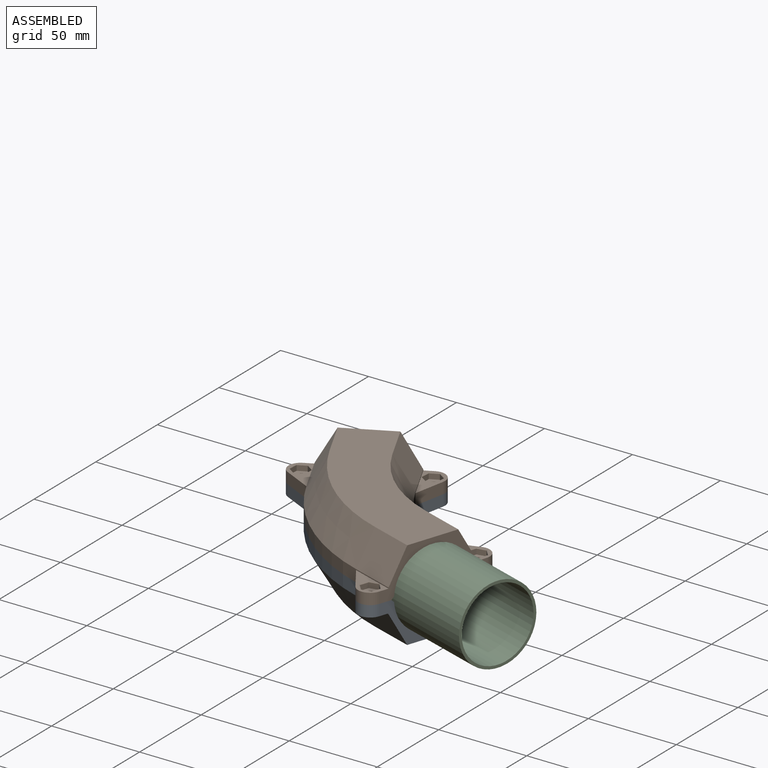
[diagram: assembled view]
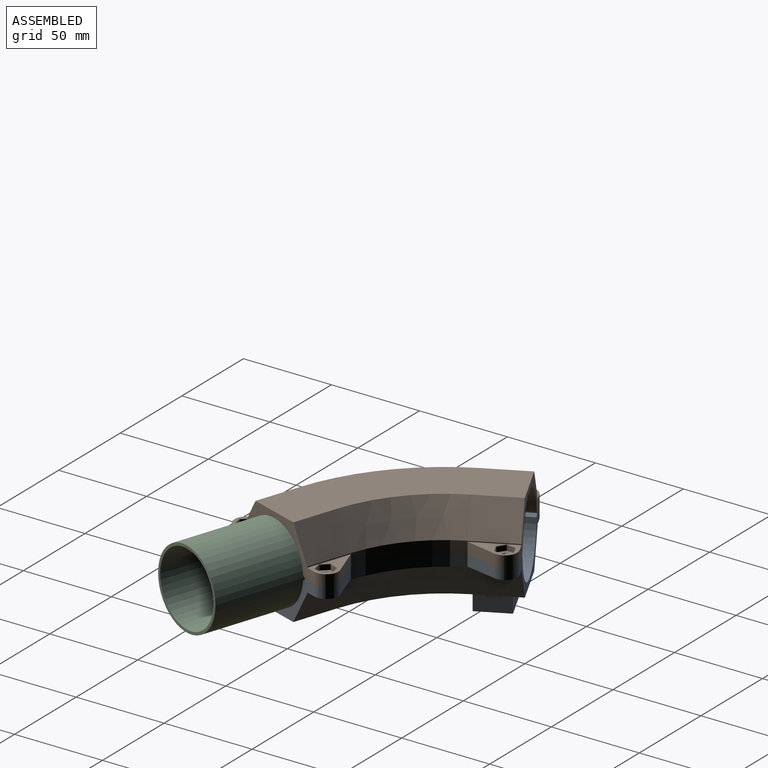
[diagram: assembled view, second angle]
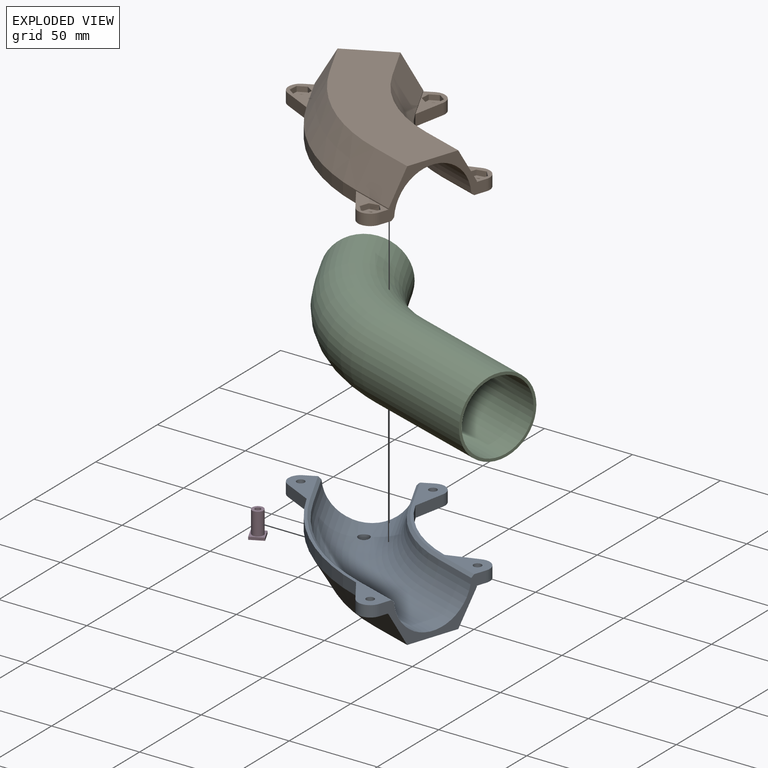
[diagram: exploded view]
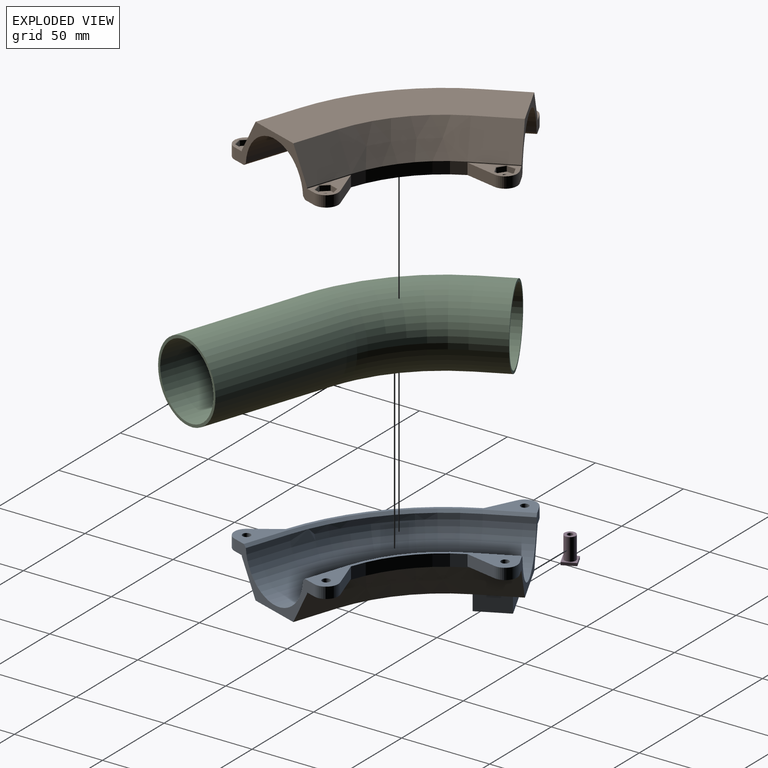
[diagram: exploded view, second angle]
ASSEMBLY  parts=4 mates=6
PART A: 52 faces, bbox 108.9x137.1x36.7 mm
  f0: cylinder r=22.42mm len=44.73mm, axis (0,1,0), area 1681.6mm2, adj f2,f20,f32,f35,f45
  f1: plane 43.99x43.99mm, normal (0.71,-0.71,0), area 385.6mm2, adj f3,f4,f5,f18,f19,f21,f22,f23
  f2: plane 62.21x25.59mm, normal (0,1,0), area 385.6mm2, adj f0,f3,f4,f9,f10,f19,f26,f27
  f3: plane 123.54x72.07mm, normal (0,0,-1), area 3426.9mm2, adj f1,f2,f40,f41,f42,f43,f46,f47
  f4: plane 137.11x67.91mm, normal (0,0,1), area 619mm2, adj f1,f2,f10,f11,f12,f13,f14,f17
  f5: cylinder r=6.9mm len=11.72mm, axis (0,0,-1), area 97.6mm2, adj f1,f6,f19,f24
  f6: plane 17.87x6.35mm, normal (0.13,0.99,0), area 114.5mm2, adj f5,f7,f19,f24
  f7: cylinder r=73.03mm len=51.64mm, axis (0,0,-1), area 393.3mm2, adj f6,f8,f19,f25,f27,f47
  f8: plane 14.29x10.99mm, normal (0.79,-0.61,0), area 114.5mm2, adj f7,f9,f19,f26
  f9: cylinder r=6.9mm len=11.11mm, axis (0,0,-1), area 97.6mm2, adj f2,f8,f19,f26
  f10: cylinder r=6.9mm len=11.11mm, axis (0,0,-1), area 97.6mm2, adj f2,f4,f11,f28
  f11: plane 14.29x10.99mm, normal (-0.79,-0.61,0), area 114.5mm2, adj f4,f10,f12,f28
  f12: cylinder r=124.21mm len=87.83mm, axis (0,0,-1), area 668.9mm2, adj f4,f11,f13,f23,f29,f50
  f13: plane 17.87x6.35mm, normal (-0.99,-0.13,0), area 114.5mm2, adj f4,f12,f18,f22
  f14: cylinder r=2.25mm len=4.5mm, axis (0,0,-1), area 44.8mm2, adj f4,f39
  f15: cylinder r=2.25mm len=4.5mm, axis (0,0,-1), area 44.8mm2, adj f19,f38
  f16: cylinder r=2.25mm len=4.5mm, axis (0,0,-1), area 44.8mm2, adj f19,f37
  f17: cylinder r=2.25mm len=4.5mm, axis (0,0,-1), area 44.8mm2, adj f4,f36
  f18: cylinder r=6.9mm len=11.72mm, axis (0,0,-1), area 97.6mm2, adj f1,f4,f13,f22
  f19: plane 96.16x46.91mm, normal (0,0,1), area 555.2mm2, adj f1,f2,f5,f6,f7,f8,f9,f15
  f20: torus R=98.62mm, axis (0,0,1), area 5224.4mm2, adj f0,f21,f31,f34
  f21: cylinder r=22.42mm len=49.59mm, axis (-0.71,0.71,0), area 1713.3mm2, adj f1,f20,f30,f33
  f22: plane 23.88x17.96mm, normal (0,0,-1), area 111.9mm2, adj f1,f13,f18,f23,f36
  f23: plane 17.96x17.96mm, normal (-0.71,-0.71,0), area 12.9mm2, adj f1,f12,f22,f51
  f24: plane 23.88x17.96mm, normal (0,0,-1), area 111.9mm2, adj f1,f5,f6,f25,f37
  f25: plane 17.96x17.96mm, normal (0.71,0.71,0), area 12.9mm2, adj f1,f7,f24,f48
  f26: plane 25.4x12.42mm, normal (0,0,-1), area 111.9mm2, adj f2,f8,f9,f27,f38
  f27: plane 25.4x0.51mm, normal (1,0,0), area 12.9mm2, adj f2,f7,f26,f46
  f28: plane 25.4x12.42mm, normal (0,0,-1), area 111.9mm2, adj f2,f10,f11,f29,f39
  f29: plane 25.4x0.51mm, normal (-1,0,0), area 12.9mm2, adj f2,f12,f28,f49
  f30: plane 19.08x19.08mm, normal (-0.48,-0.48,0.73), area 55.1mm2, adj f1,f19,f21,f31
  f31: cone r=74.67mm half-angle=46.9deg, axis (0,0,-1), area 128.6mm2, adj f19,f20,f30,f32
  f32: plane 25.4x1.58mm, normal (-0.68,0,0.73), area 55.1mm2, adj f0,f2,f19,f31
  f33: plane 19.08x19.08mm, normal (0.48,0.48,0.73), area 55.1mm2, adj f1,f4,f21,f34
  f34: cone r=120.98mm half-angle=46.9deg, axis (0,0,1), area 207.5mm2, adj f4,f20,f33,f35
  f35: plane 25.4x1.58mm, normal (0.68,0,0.73), area 55.1mm2, adj f0,f2,f4,f34
  f36: cone r=5.42mm half-angle=45deg, axis (0,0,-1), area 108.2mm2, adj f17,f22
  f37: cone r=5.42mm half-angle=45deg, axis (0,0,-1), area 108.2mm2, adj f16,f24
  f38: cone r=5.42mm half-angle=45deg, axis (0,0,-1), area 108.2mm2, adj f15,f26
  f39: cone r=5.42mm half-angle=45deg, axis (0,0,-1), area 108.2mm2, adj f14,f28
  f40: plane 19.05x11.11mm, normal (0,1,0), area 211.7mm2, adj f3,f41,f43,f44
  f41: plane 19.05x11.11mm, normal (1,0,0), area 211.7mm2, adj f3,f40,f42,f44
  f42: plane 19.05x11.11mm, normal (0,-1,0), area 211.7mm2, adj f3,f41,f43,f44
  f43: plane 19.05x11.11mm, normal (-1,0,0), area 211.7mm2, adj f3,f40,f42,f44
  f44: plane 19.05x19.05mm, normal (0,0,-1), area 331.2mm2, adj f40,f41,f42,f43,f45
  f45: cylinder r=3.17mm len=14.51mm, axis (0,0,-1), area 287.3mm2, adj f0,f44
  f46: plane 25.4x18.73mm, normal (0.87,0,-0.5), area 549.4mm2, adj f2,f3,f27,f47
  f47: cone r=83.84mm half-angle=30deg, axis (0,0,-1), area 1332.5mm2, adj f3,f7,f46,f48
  f48: plane 25.61x25.61mm, normal (0.61,0.61,-0.5), area 549.4mm2, adj f1,f3,f25,f47
  f49: plane 25.4x18.73mm, normal (-0.87,0,-0.5), area 549.4mm2, adj f2,f3,f29,f50
  f50: cone r=124.21mm half-angle=30deg, axis (0,0,1), area 2018.3mm2, adj f3,f12,f49,f51
  f51: plane 25.61x25.61mm, normal (-0.61,-0.61,-0.5), area 549.4mm2, adj f1,f3,f23,f50
PART B: 94 faces, bbox 108.9x137.1x25.6 mm
  f0: cylinder r=2.25mm len=4.5mm, axis (0,0,-1), area 44.8mm2, adj f11,f36
  f1: cylinder r=2.25mm len=4.5mm, axis (0,0,-1), area 44.8mm2, adj f22,f43
  f2: cylinder r=2.25mm len=4.5mm, axis (0,0,-1), area 44.8mm2, adj f22,f50
  f3: cylinder r=2.25mm len=4.5mm, axis (0,0,-1), area 44.8mm2, adj f11,f57
  f4: plane 23.88x17.96mm, normal (0,0,-1), area 126.1mm2, adj f8,f20,f21,f26,f64,f65,f66,f67
  f5: plane 23.88x17.96mm, normal (0,0,-1), area 126.1mm2, adj f8,f12,f13,f27,f70,f71,f72,f73
  f6: plane 25.4x12.42mm, normal (0,0,-1), area 126.1mm2, adj f9,f15,f16,f28,f76,f77,f78,f79
  f7: plane 25.4x12.42mm, normal (0,0,-1), area 126.1mm2, adj f9,f17,f18,f29,f82,f83,f84,f85
  f8: plane 43.99x43.99mm, normal (0.71,-0.71,0), area 385.6mm2, adj f4,f5,f10,f11,f12,f21,f22,f25
  f9: plane 62.21x25.59mm, normal (0,1,0), area 385.6mm2, adj f6,f7,f10,f11,f16,f17,f22,f23
  f10: plane 123.54x72.07mm, normal (0,0,-1), area 3789.8mm2, adj f8,f9,f88,f89,f90,f91,f92,f93
  f11: plane 137.11x67.91mm, normal (0,0,1), area 619mm2, adj f0,f3,f8,f9,f17,f18,f19,f20
  f12: cylinder r=6.9mm len=11.72mm, axis (0,0,-1), area 97.6mm2, adj f5,f8,f13,f22
  f13: plane 17.87x6.35mm, normal (0.13,0.99,0), area 114.5mm2, adj f5,f12,f14,f22
  f14: cylinder r=73.03mm len=51.64mm, axis (0,0,-1), area 393.3mm2, adj f13,f15,f22,f27,f28,f92
  f15: plane 14.29x10.99mm, normal (0.79,-0.61,0), area 114.5mm2, adj f6,f14,f16,f22
  f16: cylinder r=6.9mm len=11.11mm, axis (0,0,-1), area 97.6mm2, adj f6,f9,f15,f22
  f17: cylinder r=6.9mm len=11.11mm, axis (0,0,-1), area 97.6mm2, adj f7,f9,f11,f18
  f18: plane 14.29x10.99mm, normal (-0.79,-0.61,0), area 114.5mm2, adj f7,f11,f17,f19
  f19: cylinder r=124.21mm len=87.83mm, axis (0,0,-1), area 668.9mm2, adj f11,f18,f20,f26,f29,f89
  f20: plane 17.87x6.35mm, normal (-0.99,-0.13,0), area 114.5mm2, adj f4,f11,f19,f21
  f21: cylinder r=6.9mm len=11.72mm, axis (0,0,-1), area 97.6mm2, adj f4,f8,f11,f20
  f22: plane 96.16x46.91mm, normal (0,0,1), area 555.2mm2, adj f1,f2,f8,f9,f12,f13,f14,f15
  f23: cylinder r=22.42mm len=44.73mm, axis (0,1,0), area 1713.3mm2, adj f9,f24,f60,f63
  f24: torus R=98.62mm, axis (0,0,1), area 5224.4mm2, adj f23,f25,f59,f62
  f25: cylinder r=22.42mm len=49.59mm, axis (-0.71,0.71,0), area 1713.3mm2, adj f8,f24,f58,f61
  f26: plane 17.96x17.96mm, normal (-0.71,-0.71,0), area 12.9mm2, adj f4,f8,f19,f90
  f27: plane 17.96x17.96mm, normal (0.71,0.71,0), area 12.9mm2, adj f5,f8,f14,f93
  f28: plane 25.4x0.51mm, normal (1,0,0), area 12.9mm2, adj f6,f9,f14,f91
  f29: plane 25.4x0.51mm, normal (-1,0,0), area 12.9mm2, adj f7,f9,f19,f88
  f30: plane 4.52x2.95mm, normal (0.87,0.5,0), area 15.4mm2, adj f31,f35,f36,f83
  f31: plane 4.52x2.95mm, normal (0.87,-0.5,0), area 15.4mm2, adj f30,f32,f36,f82
  f32: plane 5.22x2.95mm, normal (0,-1,0), area 15.4mm2, adj f31,f33,f36,f84
  f33: plane 4.52x2.95mm, normal (-0.87,-0.5,0), area 15.4mm2, adj f32,f34,f36,f86
  f34: plane 4.52x2.95mm, normal (-0.87,0.5,0), area 15.4mm2, adj f33,f35,f36,f87
  f35: plane 5.22x2.95mm, normal (0,1,0), area 15.4mm2, adj f30,f34,f36,f85
  f36: plane 10.44x9.04mm, normal (0,0,-1), area 54.9mm2, adj f0,f30,f31,f32,f33,f34,f35
  f37: plane 4.52x2.95mm, normal (0.87,0.5,0), area 15.4mm2, adj f38,f42,f43,f79
  f38: plane 4.52x2.95mm, normal (0.87,-0.5,0), area 15.4mm2, adj f37,f39,f43,f77
  f39: plane 5.22x2.95mm, normal (0,-1,0), area 15.4mm2, adj f38,f40,f43,f76
  f40: plane 4.52x2.95mm, normal (-0.87,-0.5,0), area 15.4mm2, adj f39,f41,f43,f78
  f41: plane 4.52x2.95mm, normal (-0.87,0.5,0), area 15.4mm2, adj f40,f42,f43,f80
  f42: plane 5.22x2.95mm, normal (0,1,0), area 15.4mm2, adj f37,f41,f43,f81
  f43: plane 10.44x9.04mm, normal (0,0,-1), area 54.9mm2, adj f1,f37,f38,f39,f40,f41,f42
  f44: plane 5.04x2.95mm, normal (0.26,0.97,0), area 15.4mm2, adj f45,f49,f50,f71
  f45: plane 5.04x2.95mm, normal (0.97,0.26,0), area 15.4mm2, adj f44,f46,f50,f70
  f46: plane 3.69x3.69mm, normal (0.71,-0.71,0), area 15.4mm2, adj f45,f47,f50,f72
  f47: plane 5.04x2.95mm, normal (-0.26,-0.97,0), area 15.4mm2, adj f46,f48,f50,f74
  f48: plane 5.04x2.95mm, normal (-0.97,-0.26,0), area 15.4mm2, adj f47,f49,f50,f75
  f49: plane 3.69x3.69mm, normal (-0.71,0.71,0), area 15.4mm2, adj f44,f48,f50,f73
  f50: plane 10.08x10.08mm, normal (0,0,-1), area 54.9mm2, adj f2,f44,f45,f46,f47,f48,f49
  f51: plane 5.04x2.95mm, normal (0.26,0.97,0), area 15.4mm2, adj f52,f56,f57,f68
  f52: plane 5.04x2.95mm, normal (0.97,0.26,0), area 15.4mm2, adj f51,f53,f57,f69
  f53: plane 3.69x3.69mm, normal (0.71,-0.71,0), area 15.4mm2, adj f52,f54,f57,f67
  f54: plane 5.04x2.95mm, normal (-0.26,-0.97,0), area 15.4mm2, adj f53,f55,f57,f65
  f55: plane 5.04x2.95mm, normal (-0.97,-0.26,0), area 15.4mm2, adj f54,f56,f57,f64
  f56: plane 3.69x3.69mm, normal (-0.71,0.71,0), area 15.4mm2, adj f51,f55,f57,f66
  f57: plane 10.08x10.08mm, normal (0,0,-1), area 54.9mm2, adj f3,f51,f52,f53,f54,f55,f56
  f58: plane 19.08x19.08mm, normal (0.48,0.48,0.73), area 55.1mm2, adj f8,f11,f25,f59
  f59: cone r=120.98mm half-angle=46.9deg, axis (0,0,1), area 207.5mm2, adj f11,f24,f58,f60
  f60: plane 25.4x1.58mm, normal (0.68,0,0.73), area 55.1mm2, adj f9,f11,f23,f59
  f61: plane 19.08x19.08mm, normal (-0.48,-0.48,0.73), area 55.1mm2, adj f8,f22,f25,f62
  f62: cone r=74.67mm half-angle=46.9deg, axis (0,0,-1), area 128.6mm2, adj f22,f24,f61,f63
  f63: plane 25.4x1.58mm, normal (-0.68,0,0.73), area 55.1mm2, adj f9,f22,f23,f62
  f64: plane 5.3x1.61mm, normal (-0.68,-0.18,-0.71), area 1.7mm2, adj f4,f55,f65,f66
  f65: plane 5.3x1.61mm, normal (-0.18,-0.68,-0.71), area 1.7mm2, adj f4,f54,f64,f67
  f66: plane 3.95x3.95mm, normal (-0.5,0.5,-0.71), area 1.7mm2, adj f4,f56,f64,f68
  f67: plane 3.95x3.95mm, normal (0.5,-0.5,-0.71), area 1.7mm2, adj f4,f53,f65,f69
  f68: plane 5.3x1.61mm, normal (0.18,0.68,-0.71), area 1.7mm2, adj f4,f51,f66,f69
  f69: plane 5.3x1.61mm, normal (0.68,0.18,-0.71), area 1.7mm2, adj f4,f52,f67,f68
  f70: plane 5.3x1.61mm, normal (0.68,0.18,-0.71), area 1.7mm2, adj f5,f45,f71,f72
  f71: plane 5.3x1.61mm, normal (0.18,0.68,-0.71), area 1.7mm2, adj f5,f44,f70,f73
  f72: plane 3.95x3.95mm, normal (0.5,-0.5,-0.71), area 1.7mm2, adj f5,f46,f70,f74
  f73: plane 3.95x3.95mm, normal (-0.5,0.5,-0.71), area 1.7mm2, adj f5,f49,f71,f75
  f74: plane 5.3x1.61mm, normal (-0.18,-0.68,-0.71), area 1.7mm2, adj f5,f47,f72,f75
  f75: plane 5.3x1.61mm, normal (-0.68,-0.18,-0.71), area 1.7mm2, adj f5,f48,f73,f74
  f76: plane 5.48x0.23mm, normal (0,-0.71,-0.71), area 1.7mm2, adj f6,f39,f77,f78
  f77: plane 4.75x2.87mm, normal (0.61,-0.35,-0.71), area 1.7mm2, adj f6,f38,f76,f79
  f78: plane 4.75x2.87mm, normal (-0.61,-0.35,-0.71), area 1.7mm2, adj f6,f40,f76,f80
  f79: plane 4.75x2.87mm, normal (0.61,0.35,-0.71), area 1.7mm2, adj f6,f37,f77,f81
  f80: plane 4.75x2.87mm, normal (-0.61,0.35,-0.71), area 1.7mm2, adj f6,f41,f78,f81
  f81: plane 5.48x0.23mm, normal (0,0.71,-0.71), area 1.7mm2, adj f6,f42,f79,f80
  f82: plane 4.75x2.87mm, normal (0.61,-0.35,-0.71), area 1.7mm2, adj f7,f31,f83,f84
  f83: plane 4.75x2.87mm, normal (0.61,0.35,-0.71), area 1.7mm2, adj f7,f30,f82,f85
  f84: plane 5.48x0.23mm, normal (0,-0.71,-0.71), area 1.7mm2, adj f7,f32,f82,f86
  f85: plane 5.48x0.23mm, normal (0,0.71,-0.71), area 1.7mm2, adj f7,f35,f83,f87
  f86: plane 4.75x2.87mm, normal (-0.61,-0.35,-0.71), area 1.7mm2, adj f7,f33,f84,f87
  f87: plane 4.75x2.87mm, normal (-0.61,0.35,-0.71), area 1.7mm2, adj f7,f34,f85,f86
  f88: plane 25.4x18.73mm, normal (-0.87,0,-0.5), area 549.4mm2, adj f9,f10,f29,f89
  f89: cone r=124.21mm half-angle=30deg, axis (0,0,1), area 2018.3mm2, adj f10,f19,f88,f90
  f90: plane 25.61x25.61mm, normal (-0.61,-0.61,-0.5), area 549.4mm2, adj f8,f10,f26,f89
  f91: plane 25.4x18.73mm, normal (0.87,0,-0.5), area 549.4mm2, adj f9,f10,f28,f92
  f92: cone r=83.84mm half-angle=30deg, axis (0,0,-1), area 1332.5mm2, adj f10,f14,f91,f93
  f93: plane 25.61x25.61mm, normal (0.61,0.61,-0.5), area 549.4mm2, adj f8,f10,f27,f92
PART C: 9 faces, bbox 158.5x131x44.8 mm
  f0: cylinder r=22.42mm len=44.83mm, axis (1,0,0), area 2675.1mm2, adj f4,f6,f8
  f1: cylinder r=20.83mm len=41.66mm, axis (1,0,0), area 2485.1mm2, adj f2,f4,f8
  f2: torus R=98.62mm, axis (0,0,1), area 10135.9mm2, adj f1,f3
  f3: cylinder r=20.83mm len=83.34mm, axis (0.71,0.71,0), area 9972mm2, adj f2,f5
  f4: plane 44.83x44.83mm, normal (-1,0,0), area 215.7mm2, adj f0,f1
  f5: plane 44.83x31.7mm, normal (0.71,0.71,0), area 215.7mm2, adj f3,f7
  f6: torus R=98.62mm, axis (0,0,1), area 10908.5mm2, adj f0,f7
  f7: cylinder r=22.42mm len=85.58mm, axis (0.71,0.71,0), area 10732.1mm2, adj f5,f6
  f8: cylinder r=1.59mm len=3.18mm, axis (0,0,1), area 15.9mm2, adj f0,f1
PART D: 9 faces, bbox 7.9x7.9x14.3 mm
  f0: cylinder r=1.59mm len=14.29mm, axis (0,0,-1), area 142.5mm2, adj f2,f7
  f1: cylinder r=3.17mm len=12.7mm, axis (0,0,-1), area 253.4mm2, adj f2,f8
  f2: plane 6.35x6.35mm, normal (0,0,-1), area 23.8mm2, adj f0,f1
  f3: plane 7.94x1.59mm, normal (0,1,0), area 12.6mm2, adj f4,f6,f7,f8
  f4: plane 7.94x1.59mm, normal (-1,0,0), area 12.6mm2, adj f3,f5,f7,f8
  f5: plane 7.94x1.59mm, normal (0,-1,0), area 12.6mm2, adj f4,f6,f7,f8
  f6: plane 7.94x1.59mm, normal (1,0,0), area 12.6mm2, adj f3,f5,f7,f8
  f7: plane 7.94x7.94mm, normal (0,0,1), area 55.1mm2, adj f0,f3,f4,f5,f6
  f8: plane 7.94x7.94mm, normal (0,0,-1), area 31.3mm2, adj f1,f3,f4,f5,f6
PLACE A rot(axis=(0,0,1),26.5deg) t=(-7.73,47.26,-155.28)mm
PLACE B rot(axis=(-0.81,-0.58,0),180deg) t=(84.69,-33.01,-104.1)mm
PLACE C rot(axis=(0,0,-1),63.5deg) t=(-4.9,41.58,-129.69)mm
PLACE D rot(axis=(0.97,0.23,0),180deg) t=(-0.64,33.06,-153.69)mm
MATE cylindrical D.f0 <-> A.f45  axis (0,0,1) through (-0.64,33.06,-160.04)mm
MATE cylindrical C.f8 <-> D.f0  axis (0,0,1) through (-0.64,33.06,-151.28)mm
MATE cylindrical C.f0 <-> B.f25  axis (0.45,-0.89,0) through (-0.64,33.06,-129.69)mm
MATE planar D.f0 <-> A.f45  axis (0,0,1) through (-0.64,33.06,-166.39)mm
MATE cylindrical B.f14 <-> A.f7  axis (0,0,1) through (91.85,68.58,-126.26)mm
MATE cylindrical B.f1 <-> A.f5  axis (0,0,1) through (88,-1.32,-126.51)mm
